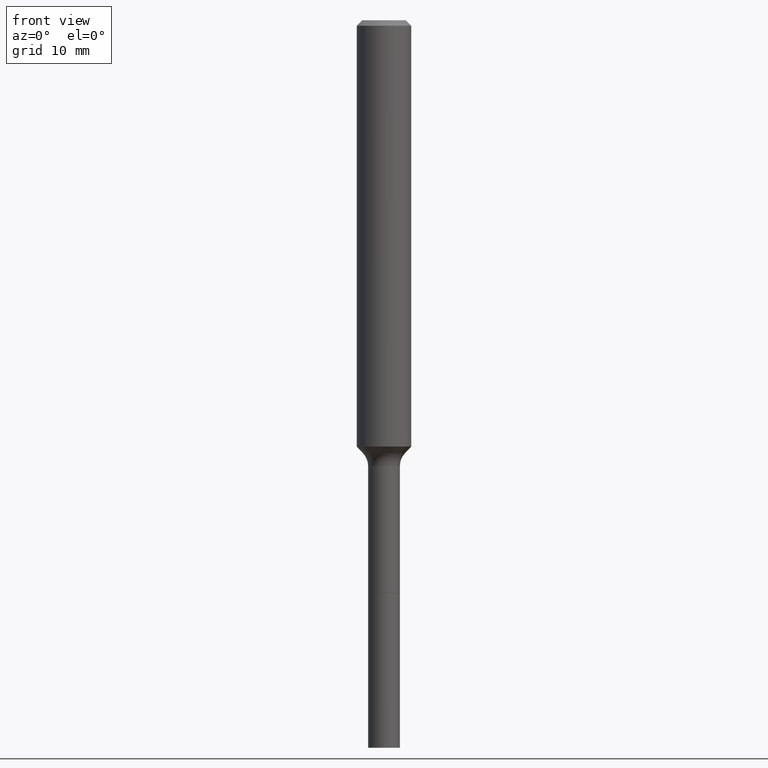
[diagram: clean part render]
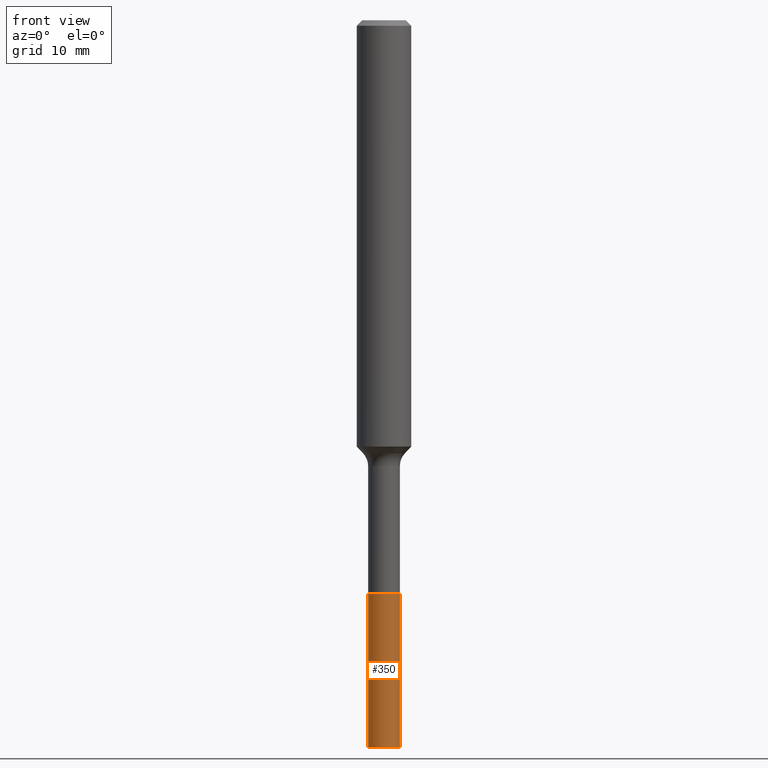
[diagram: same view with one face highlighted and labeled with its STEP entity id]
A machine part, front view. The second image highlights one B-rep face of the part: STEP entity #350.
In plain terms, the highlighted cylindrical surface (edge-blend (fillet) strip) has radius 1.7501 mm, axis along (-0, 0, 1).
Its self-contained STEP definition (entity closure, byte-faithful):
#26 = DIRECTION ( 'NONE',  ( 1.000000000000000000, -6.982962677686260400E-15, 0.000000000000000000 ) ) ;
#35 = AXIS2_PLACEMENT_3D ( 'NONE', #404, #299, #55 ) ;
#43 = VERTEX_POINT ( 'NONE', #53 ) ;
#53 = CARTESIAN_POINT ( 'NONE',  ( -0.06890000000000021108, -9.339305172038629548E-15, -3.149600000000000399 ) ) ;
#54 = VECTOR ( 'NONE', #233, 39.37007874015748143 ) ;
#55 = DIRECTION ( 'NONE',  ( 1.000000000000000000, -6.982962677686270655E-15, 0.000000000000000000 ) ) ;
#78 = VERTEX_POINT ( 'NONE', #143 ) ;
#90 = VERTEX_POINT ( 'NONE', #187 ) ;
#98 = LINE ( 'NONE', #130, #489 ) ;
#124 = AXIS2_PLACEMENT_3D ( 'NONE', #159, #318, #347 ) ;
#128 = ORIENTED_EDGE ( 'NONE', *, *, #232, .F. ) ;
#130 = CARTESIAN_POINT ( 'NONE',  ( -0.06890000000000010005, -8.171404664195598696E-15, -2.480600000000000360 ) ) ;
#132 = LINE ( 'NONE', #366, #54 ) ;
#135 = ORIENTED_EDGE ( 'NONE', *, *, #362, .F. ) ;
#143 = CARTESIAN_POINT ( 'NONE',  ( 0.06890000000000019720, -1.147789575331295763E-14, -3.149600000000000399 ) ) ;
#159 = CARTESIAN_POINT ( 'NONE',  ( 6.066229920622851108E-29, -8.660968609134307449E-15, -2.480600000000000360 ) ) ;
#187 = CARTESIAN_POINT ( 'NONE',  ( -0.06890000000000000291, -9.339305172038631126E-15, -2.480600000000000360 ) ) ;
#195 = EDGE_CURVE ( 'NONE', #78, #484, #132, .T. ) ;
#219 = FACE_OUTER_BOUND ( 'NONE', #512, .T. ) ;
#224 = AXIS2_PLACEMENT_3D ( 'NONE', #385, #506, #26 ) ;
#232 = EDGE_CURVE ( 'NONE', #90, #484, #351, .T. ) ;
#233 = DIRECTION ( 'NONE',  ( -2.445468806185136877E-29, 3.491481338843145188E-15, 1.000000000000000000 ) ) ;
#299 = DIRECTION ( 'NONE',  ( -2.445468806185136597E-29, 3.491481338843145583E-15, 1.000000000000000000 ) ) ;
#318 = DIRECTION ( 'NONE',  ( -2.445468806185136597E-29, 3.491481338843145583E-15, 1.000000000000000000 ) ) ;
#347 = DIRECTION ( 'NONE',  ( 1.000000000000000000, -6.982962677686280121E-15, 0.000000000000000000 ) ) ;
#350 = ADVANCED_FACE ( 'NONE', ( #219 ), #365, .T. ) ;
#351 = CIRCLE ( 'NONE', #124, 0.06890000000000000291 ) ;
#353 = CARTESIAN_POINT ( 'NONE',  ( 0.06890000000000000291, -9.142094737626892765E-15, -2.480600000000000360 ) ) ;
#362 = EDGE_CURVE ( 'NONE', #43, #90, #98, .T. ) ;
#365 = CYLINDRICAL_SURFACE ( 'NONE', #35, 0.06890000000000010005 ) ;
#366 = CARTESIAN_POINT ( 'NONE',  ( 0.06890000000000010005, -9.142094737626892765E-15, -2.480600000000000360 ) ) ;
#371 = DIRECTION ( 'NONE',  ( -2.445468806185136877E-29, 3.491481338843145188E-15, 1.000000000000000000 ) ) ;
#385 = CARTESIAN_POINT ( 'NONE',  ( 7.702248551960706711E-29, -1.099676962482037231E-14, -3.149600000000000399 ) ) ;
#404 = CARTESIAN_POINT ( 'NONE',  ( 6.066229920622851108E-29, -8.660968609134307449E-15, -2.480600000000000360 ) ) ;
#405 = ORIENTED_EDGE ( 'NONE', *, *, #499, .T. ) ;
#407 = CIRCLE ( 'NONE', #224, 0.06890000000000019720 ) ;
#437 = ORIENTED_EDGE ( 'NONE', *, *, #195, .T. ) ;
#484 = VERTEX_POINT ( 'NONE', #353 ) ;
#489 = VECTOR ( 'NONE', #371, 39.37007874015748143 ) ;
#499 = EDGE_CURVE ( 'NONE', #43, #78, #407, .T. ) ;
#506 = DIRECTION ( 'NONE',  ( -2.445468806185136597E-29, 3.491481338843145583E-15, 1.000000000000000000 ) ) ;
#512 = EDGE_LOOP ( 'NONE', ( #135, #405, #437, #128 ) ) ;